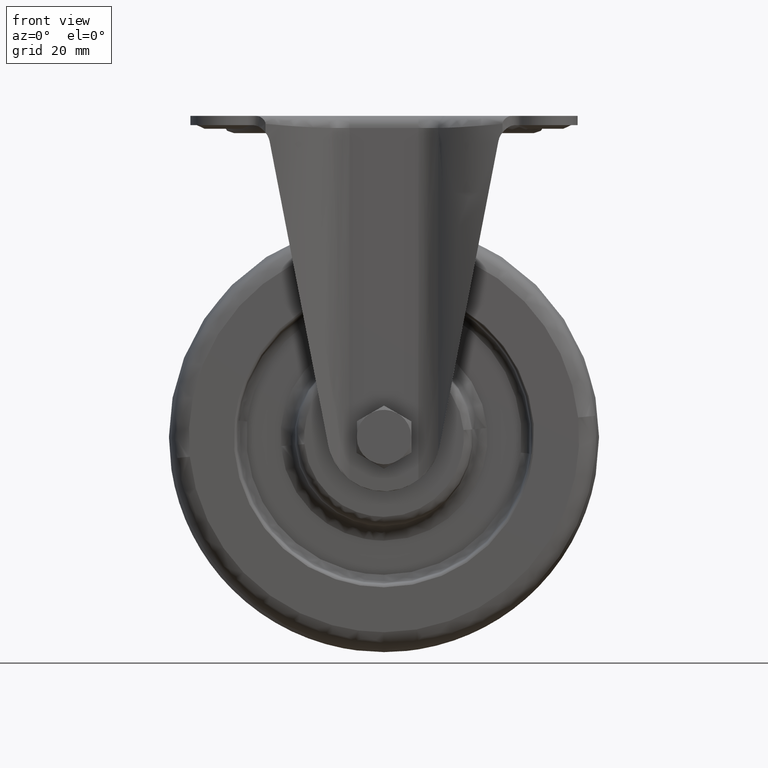
[diagram: clean part render]
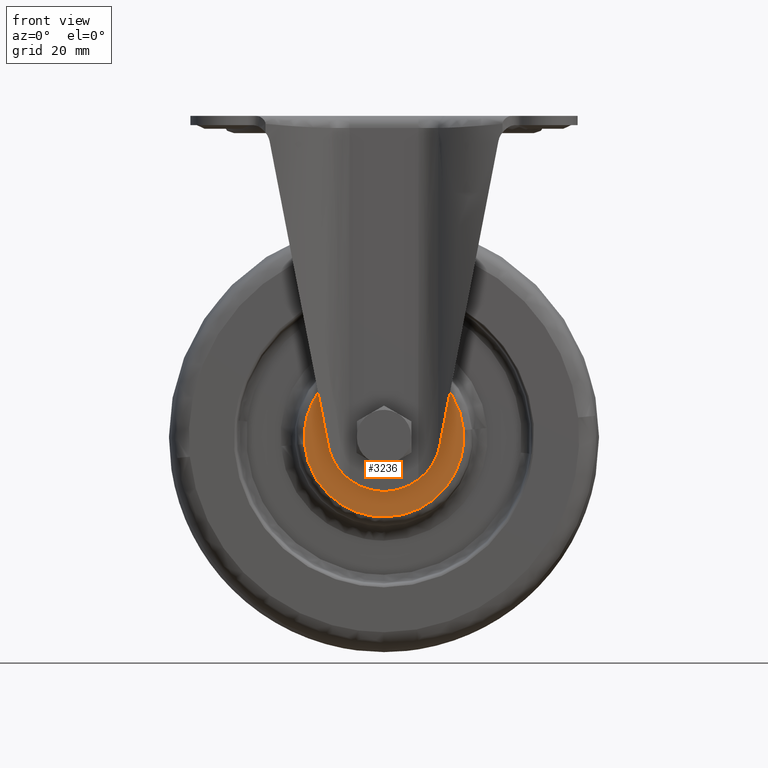
[diagram: same view with one face highlighted and labeled with its STEP entity id]
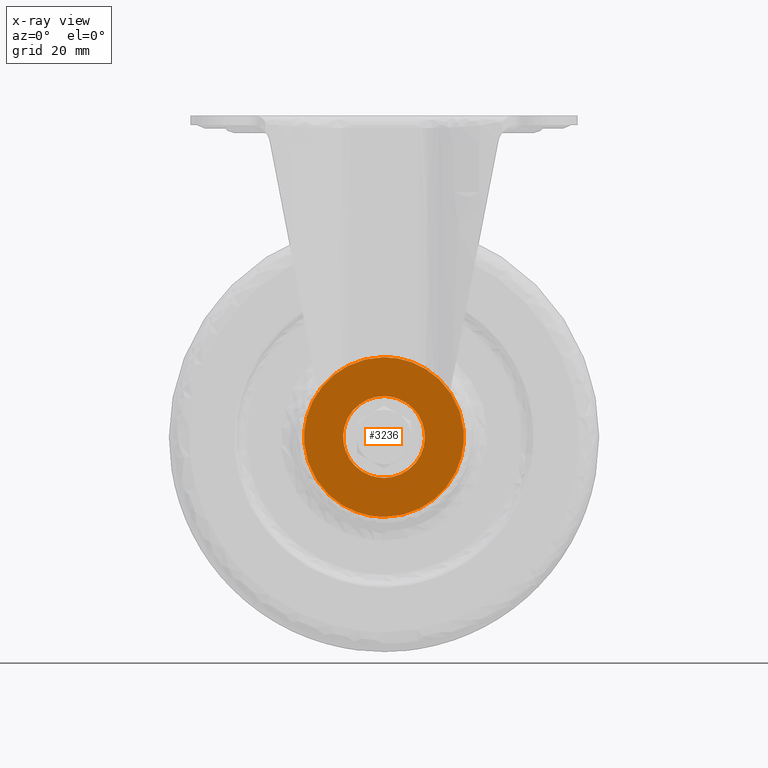
[diagram: x-ray of the same camera — body ghosted, the highlighted face saturated]
A machine part, front view. The second image highlights one B-rep face of the part: STEP entity #3236.
The next image is the same camera in x-ray: the body ghosted, the highlighted face saturated — about 0% of this face is hidden behind the body in this view.
In plain terms, the highlighted face is a freeform B-spline surface patch.
Its self-contained STEP definition (entity closure, byte-faithful):
#3032=CARTESIAN_POINT('',(-27.733536137272051,-25.199999999999999,-114.445881067798690));
#3033=VERTEX_POINT('',#3032);
#3034=CARTESIAN_POINT('',(0.0,-25.199999999999999,-139.841181004330110));
#3035=VERTEX_POINT('',#3034);
#3036=CARTESIAN_POINT('',(-27.733536137272043,-25.199999999999996,-114.445881067798680));
#3037=CARTESIAN_POINT('',(-25.493869211624542,-25.199999999999992,-139.841181005244640));
#3038=CARTESIAN_POINT('',(0.0,-25.199999999999999,-139.841181004330110));
#3046=(BOUNDED_CURVE()B_SPLINE_CURVE(2,(#3036,#3037,#3038),.UNSPECIFIED.,.F.,.U.)B_SPLINE_CURVE_WITH_KNOTS((3,3),(0.765281545152294,1.0),.UNSPECIFIED.)CURVE()GEOMETRIC_REPRESENTATION_ITEM()RATIONAL_B_SPLINE_CURVE((0.966381850692772,0.725010224978942,1.0))REPRESENTATION_ITEM(''));
#3047=EDGE_CURVE('',#3033,#3035,#3046,.T.);
#3065=CARTESIAN_POINT('',(27.733536137272051,-25.199999999999999,-109.554118932201310));
#3066=VERTEX_POINT('',#3065);
#3080=CARTESIAN_POINT('',(0.0,-25.199999999999999,-139.841181004330110));
#3081=CARTESIAN_POINT('',(27.841181013825668,-25.199999999999989,-139.841181003492660));
#3082=CARTESIAN_POINT('',(27.841181024195532,-25.199999999999999,-111.999999998248000));
#3083=CARTESIAN_POINT('',(27.841181024651917,-25.199999999999992,-110.774690702892240));
#3084=CARTESIAN_POINT('',(27.733536137272047,-25.199999999999999,-109.554118932201290));
#3092=(BOUNDED_CURVE()B_SPLINE_CURVE(2,(#3080,#3081,#3082,#3083,#3084),.UNSPECIFIED.,.F.,.U.)B_SPLINE_CURVE_WITH_KNOTS((3,2,3),(0.0,0.250000000000000,0.265281545152294),.UNSPECIFIED.)CURVE()GEOMETRIC_REPRESENTATION_ITEM()RATIONAL_B_SPLINE_CURVE((1.0,0.707106781186548,1.0,0.982096556207606,0.966381850692773))REPRESENTATION_ITEM(''));
#3093=EDGE_CURVE('',#3035,#3066,#3092,.T.);
#3121=CARTESIAN_POINT('',(0.0,-25.199999999999999,-84.158818995669904));
#3122=VERTEX_POINT('',#3121);
#3123=CARTESIAN_POINT('',(0.0,-25.199999999999999,-84.158818995669904));
#3124=CARTESIAN_POINT('',(-27.841181013825668,-25.199999999999989,-84.158818996507335));
#3125=CARTESIAN_POINT('',(-27.841181024195539,-25.199999999999999,-112.000000001752000));
#3126=CARTESIAN_POINT('',(-27.841181024651920,-25.199999999999999,-113.225309297107800));
#3127=CARTESIAN_POINT('',(-27.733536137272043,-25.199999999999996,-114.445881067798680));
#3135=(BOUNDED_CURVE()B_SPLINE_CURVE(2,(#3123,#3124,#3125,#3126,#3127),.UNSPECIFIED.,.F.,.U.)B_SPLINE_CURVE_WITH_KNOTS((3,2,3),(0.500000000000000,0.750000000000000,0.765281545152294),.UNSPECIFIED.)CURVE()GEOMETRIC_REPRESENTATION_ITEM()RATIONAL_B_SPLINE_CURVE((1.0,0.707106781186548,1.0,0.982096556207606,0.966381850692772))REPRESENTATION_ITEM(''));
#3136=EDGE_CURVE('',#3122,#3033,#3135,.T.);
#3138=CARTESIAN_POINT('',(27.733536137272047,-25.199999999999999,-109.554118932201290));
#3139=CARTESIAN_POINT('',(25.493869211624560,-25.199999999999996,-84.158818994755379));
#3140=CARTESIAN_POINT('',(0.0,-25.199999999999999,-84.158818995669904));
#3148=(BOUNDED_CURVE()B_SPLINE_CURVE(2,(#3138,#3139,#3140),.UNSPECIFIED.,.F.,.U.)B_SPLINE_CURVE_WITH_KNOTS((3,3),(0.265281545152294,0.500000000000000),.UNSPECIFIED.)CURVE()GEOMETRIC_REPRESENTATION_ITEM()RATIONAL_B_SPLINE_CURVE((0.966381850692773,0.725010224978941,1.0))REPRESENTATION_ITEM(''));
#3149=EDGE_CURVE('',#3066,#3122,#3148,.T.);
#3159=CARTESIAN_POINT('',(-30.614684842785849,-25.199999999999999,-142.622514878739510));
#3160=CARTESIAN_POINT('',(-30.614684842785849,-25.199999999999999,-81.377483627743203));
#3161=CARTESIAN_POINT('',(30.614682851454550,-25.199999999999999,-142.622514878739510));
#3162=CARTESIAN_POINT('',(30.614682851454550,-25.199999999999999,-81.377483627743203));
#3163=B_SPLINE_SURFACE_WITH_KNOTS('',1,1,((#3159,#3161),(#3160,#3162)),.UNSPECIFIED.,.F.,.F.,.U.,(2,2),(2,2),(0.0,61.245031250996249),(0.0,61.229367694240402),.UNSPECIFIED.);
#3164=ORIENTED_EDGE('',*,*,#3093,.T.);
#3165=ORIENTED_EDGE('',*,*,#3149,.T.);
#3166=ORIENTED_EDGE('',*,*,#3136,.T.);
#3167=ORIENTED_EDGE('',*,*,#3047,.T.);
#3168=EDGE_LOOP('',(#3164,#3165,#3166,#3167));
#3169=FACE_OUTER_BOUND('',#3168,.T.);
#3170=CARTESIAN_POINT('',(0.0,-25.199999999999999,-97.750242999999898));
#3171=VERTEX_POINT('',#3170);
#3172=CARTESIAN_POINT('',(-14.223178330737600,-25.199999999999999,-111.130073146127700));
#3173=VERTEX_POINT('',#3172);
#3174=CARTESIAN_POINT('',(0.0,-25.199999999999999,-97.750242999999898));
#3175=CARTESIAN_POINT('',(-13.404832861552757,-25.199999999999996,-97.750242999999926));
#3176=CARTESIAN_POINT('',(-14.223178330737600,-25.200000000000006,-111.130073146127640));
#3184=(BOUNDED_CURVE()B_SPLINE_CURVE(2,(#3174,#3175,#3176),.UNSPECIFIED.,.F.,.U.)B_SPLINE_CURVE_WITH_KNOTS((3,3),(0.500000000000000,0.739332962238381),.UNSPECIFIED.)CURVE()GEOMETRIC_REPRESENTATION_ITEM()RATIONAL_B_SPLINE_CURVE((1.0,0.719603993287369,0.976072041665513))REPRESENTATION_ITEM(''));
#3185=EDGE_CURVE('',#3171,#3173,#3184,.T.);
#3186=ORIENTED_EDGE('',*,*,#3185,.F.);
#3187=CARTESIAN_POINT('',(14.223178330737600,-25.199999999999999,-112.869926853872300));
#3188=VERTEX_POINT('',#3187);
#3189=CARTESIAN_POINT('',(14.223178330737600,-25.199999999999999,-112.869926853872300));
#3190=CARTESIAN_POINT('',(14.249757000000098,-25.199999999999999,-112.435369452831690));
#3191=CARTESIAN_POINT('',(14.249757000000100,-25.199999999999999,-112.0));
#3192=CARTESIAN_POINT('',(14.249757000000107,-25.199999999999989,-97.750242999999912));
#3193=CARTESIAN_POINT('',(0.0,-25.199999999999999,-97.750242999999898));
#3201=(BOUNDED_CURVE()B_SPLINE_CURVE(2,(#3189,#3190,#3191,#3192,#3193),.UNSPECIFIED.,.F.,.U.)B_SPLINE_CURVE_WITH_KNOTS((3,2,3),(0.239332962238381,0.250000000000000,0.500000000000000),.UNSPECIFIED.)CURVE()GEOMETRIC_REPRESENTATION_ITEM()RATIONAL_B_SPLINE_CURVE((0.976072041665514,0.987502787899179,1.0,0.707106781186548,1.0))REPRESENTATION_ITEM(''));
#3202=EDGE_CURVE('',#3188,#3171,#3201,.T.);
#3203=ORIENTED_EDGE('',*,*,#3202,.F.);
#3204=CARTESIAN_POINT('',(0.0,-25.199999999999999,-126.249757000000100));
#3205=VERTEX_POINT('',#3204);
#3206=CARTESIAN_POINT('',(0.0,-25.199999999999999,-126.249757000000100));
#3207=CARTESIAN_POINT('',(13.404832861552771,-25.200000000000003,-126.249757000000090));
#3208=CARTESIAN_POINT('',(14.223178330737603,-25.199999999999992,-112.869926853872330));
#3216=(BOUNDED_CURVE()B_SPLINE_CURVE(2,(#3206,#3207,#3208),.UNSPECIFIED.,.F.,.U.)B_SPLINE_CURVE_WITH_KNOTS((3,3),(0.0,0.239332962238381),.UNSPECIFIED.)CURVE()GEOMETRIC_REPRESENTATION_ITEM()RATIONAL_B_SPLINE_CURVE((1.0,0.719603993287369,0.976072041665513))REPRESENTATION_ITEM(''));
#3217=EDGE_CURVE('',#3205,#3188,#3216,.T.);
#3218=ORIENTED_EDGE('',*,*,#3217,.F.);
#3219=CARTESIAN_POINT('',(-14.223178330737600,-25.200000000000006,-111.130073146127640));
#3220=CARTESIAN_POINT('',(-14.249757000000102,-25.199999999999996,-111.564630547168320));
#3221=CARTESIAN_POINT('',(-14.249757000000100,-25.199999999999999,-112.0));
#3222=CARTESIAN_POINT('',(-14.249757000000107,-25.199999999999989,-126.249757000000100));
#3223=CARTESIAN_POINT('',(0.0,-25.199999999999999,-126.249757000000100));
#3231=(BOUNDED_CURVE()B_SPLINE_CURVE(2,(#3219,#3220,#3221,#3222,#3223),.UNSPECIFIED.,.F.,.U.)B_SPLINE_CURVE_WITH_KNOTS((3,2,3),(0.739332962238381,0.750000000000000,1.0),.UNSPECIFIED.)CURVE()GEOMETRIC_REPRESENTATION_ITEM()RATIONAL_B_SPLINE_CURVE((0.976072041665513,0.987502787899179,1.0,0.707106781186548,1.0))REPRESENTATION_ITEM(''));
#3232=EDGE_CURVE('',#3173,#3205,#3231,.T.);
#3233=ORIENTED_EDGE('',*,*,#3232,.F.);
#3234=EDGE_LOOP('',(#3186,#3203,#3218,#3233));
#3235=FACE_BOUND('',#3234,.T.);
#3236=ADVANCED_FACE('',(#3169,#3235),#3163,.F.);